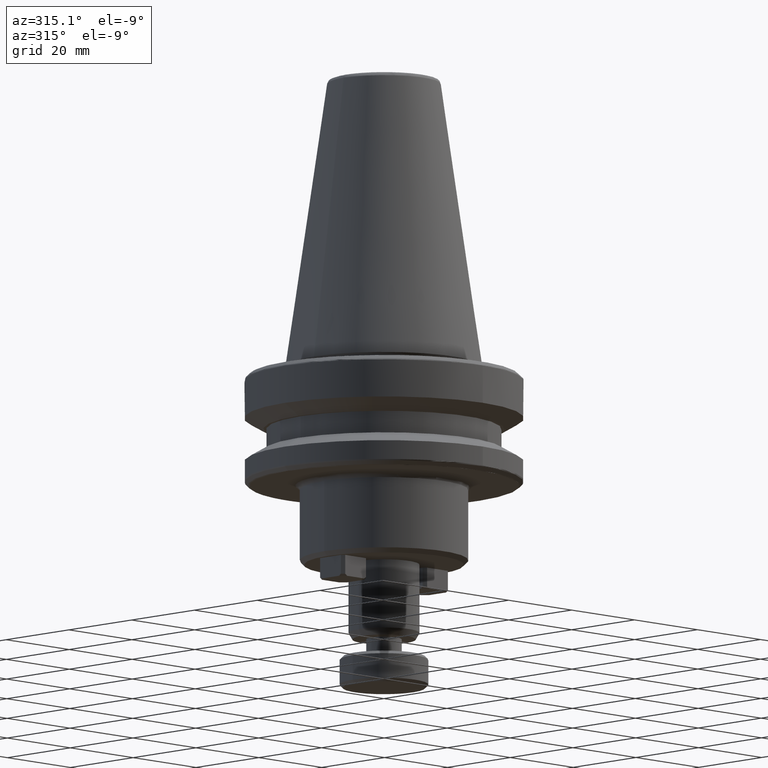
[diagram: clean part render]
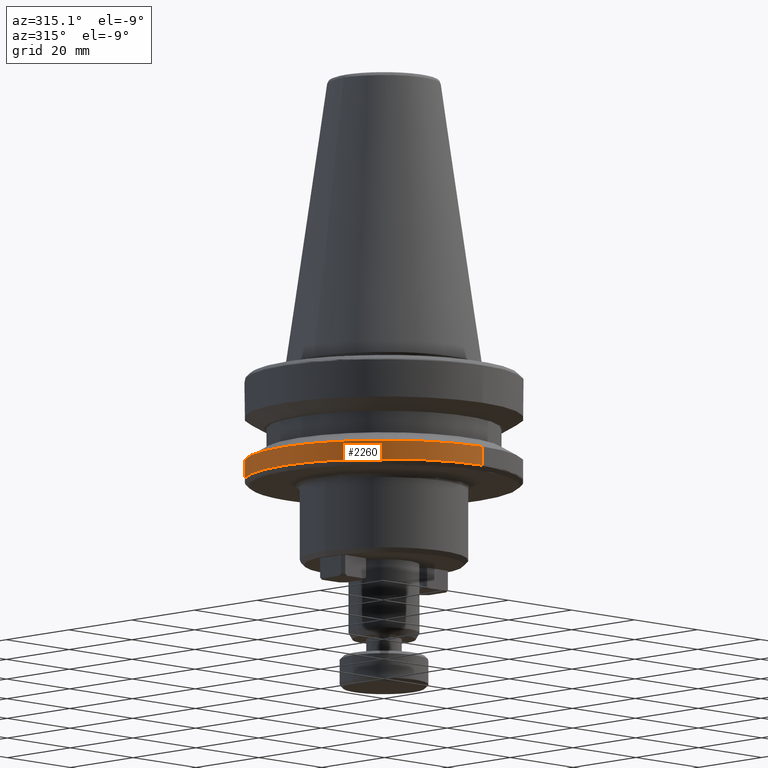
[diagram: same view with one face highlighted and labeled with its STEP entity id]
A machine part, auxiliary view. The second image highlights one B-rep face of the part: STEP entity #2260.
In plain terms, the highlighted cylindrical surface (partial cylindrical patch) has radius 31.5 mm, axis along (0, -0, 1).
Its self-contained STEP definition (entity closure, byte-faithful):
#30 = ORIENTED_EDGE ( 'NONE', *, *, #2302, .F. ) ;
#81 = DIRECTION ( 'NONE',  ( -0.0000000000000000000, 1.101411730781967500E-016, -1.000000000000000000 ) ) ;
#161 = DIRECTION ( 'NONE',  ( 0.0000000000000000000, -1.000000000000000000, 0.0000000000000000000 ) ) ;
#185 = AXIS2_PLACEMENT_3D ( 'NONE', #1345, #3449, #1649 ) ;
#258 = DIRECTION ( 'NONE',  ( 0.0000000000000000000, -5.507058653894625200E-017, 1.000000000000000000 ) ) ;
#385 = CARTESIAN_POINT ( 'NONE',  ( 0.0000000000000000000, -31.50000000000000000, -25.83431457497091800 ) ) ;
#451 = VERTEX_POINT ( 'NONE', #475 ) ;
#475 = CARTESIAN_POINT ( 'NONE',  ( -31.50000000000000000, 0.0000000000000000000, -21.57777313091598300 ) ) ;
#477 = EDGE_CURVE ( 'NONE', #3540, #3810, #3739, .T. ) ;
#488 = CIRCLE ( 'NONE', #1393, 31.50000000000000000 ) ;
#560 = AXIS2_PLACEMENT_3D ( 'NONE', #2482, #2385, #602 ) ;
#602 = DIRECTION ( 'NONE',  ( 0.0000000000000000000, 1.000000000000000000, -1.101411730778291100E-016 ) ) ;
#674 = VERTEX_POINT ( 'NONE', #729 ) ;
#729 = CARTESIAN_POINT ( 'NONE',  ( 0.0000000000000000000, -31.50000000000000000, -21.57777313091598300 ) ) ;
#791 = DIRECTION ( 'NONE',  ( -0.0000000000000000000, -0.0000000000000000000, 1.000000000000000000 ) ) ;
#824 = EDGE_CURVE ( 'NONE', #2066, #1846, #2795, .T. ) ;
#833 = CARTESIAN_POINT ( 'NONE',  ( 0.0000000000000000000, -31.50000000000000000, -25.83431457500000100 ) ) ;
#1045 = DIRECTION ( 'NONE',  ( 0.0000000000000000000, -5.507058653894625200E-017, 1.000000000000000000 ) ) ;
#1131 = LINE ( 'NONE', #833, #2830 ) ;
#1328 = FACE_OUTER_BOUND ( 'NONE', #1829, .T. ) ;
#1343 = ORIENTED_EDGE ( 'NONE', *, *, #2778, .F. ) ;
#1345 = CARTESIAN_POINT ( 'NONE',  ( 0.0000000000000000000, 0.0000000000000000000, -21.57777313091598300 ) ) ;
#1393 = AXIS2_PLACEMENT_3D ( 'NONE', #2581, #791, #2882 ) ;
#1585 = AXIS2_PLACEMENT_3D ( 'NONE', #1947, #1045, #161 ) ;
#1649 = DIRECTION ( 'NONE',  ( 1.000000000000000000, 0.0000000000000000000, 0.0000000000000000000 ) ) ;
#1751 = EDGE_CURVE ( 'NONE', #2066, #674, #1131, .T. ) ;
#1829 = EDGE_LOOP ( 'NONE', ( #3611, #1343, #2785, #1834, #30, #2734 ) ) ;
#1834 = ORIENTED_EDGE ( 'NONE', *, *, #1751, .T. ) ;
#1846 = VERTEX_POINT ( 'NONE', #3259 ) ;
#1855 = CARTESIAN_POINT ( 'NONE',  ( 0.0000000000000000000, 0.0000000000000000000, -25.83431457497092200 ) ) ;
#1876 = CYLINDRICAL_SURFACE ( 'NONE', #1585, 31.50000000000000000 ) ;
#1947 = CARTESIAN_POINT ( 'NONE',  ( 0.0000000000000000000, 0.0000000000000000000, -25.83431457500000100 ) ) ;
#2066 = VERTEX_POINT ( 'NONE', #385 ) ;
#2163 = DIRECTION ( 'NONE',  ( 0.0000000000000000000, 1.000000000000000000, 1.101411730778291100E-016 ) ) ;
#2221 = EDGE_CURVE ( 'NONE', #3810, #451, #2324, .T. ) ;
#2260 = ADVANCED_FACE ( 'NONE', ( #1328 ), #1876, .T. ) ;
#2261 = CARTESIAN_POINT ( 'NONE',  ( 3.857637417314162700E-015, 31.50000000000000000, -25.83431457500000100 ) ) ;
#2302 = EDGE_CURVE ( 'NONE', #451, #674, #488, .T. ) ;
#2324 = CIRCLE ( 'NONE', #185, 31.50000000000000000 ) ;
#2385 = DIRECTION ( 'NONE',  ( 0.0000000000000000000, -1.101411730781967500E-016, -1.000000000000000000 ) ) ;
#2482 = CARTESIAN_POINT ( 'NONE',  ( 0.0000000000000000000, 0.0000000000000000000, -25.83431457497092200 ) ) ;
#2581 = CARTESIAN_POINT ( 'NONE',  ( 0.0000000000000000000, 0.0000000000000000000, -21.57777313091598300 ) ) ;
#2591 = CIRCLE ( 'NONE', #3731, 31.50000000001813300 ) ;
#2734 = ORIENTED_EDGE ( 'NONE', *, *, #2221, .F. ) ;
#2778 = EDGE_CURVE ( 'NONE', #1846, #3540, #2591, .T. ) ;
#2785 = ORIENTED_EDGE ( 'NONE', *, *, #824, .F. ) ;
#2795 = CIRCLE ( 'NONE', #560, 31.50000000001813300 ) ;
#2830 = VECTOR ( 'NONE', #258, 1000.000000000000000 ) ;
#2882 = DIRECTION ( 'NONE',  ( 1.000000000000000000, 0.0000000000000000000, 0.0000000000000000000 ) ) ;
#2884 = CARTESIAN_POINT ( 'NONE',  ( 3.857637417314162700E-015, 31.50000000000000000, -25.83431457497091800 ) ) ;
#3017 = VECTOR ( 'NONE', #3461, 1000.000000000000000 ) ;
#3259 = CARTESIAN_POINT ( 'NONE',  ( -31.50000000001359300, -4.845568498675163300E-009, -25.83431457497197700 ) ) ;
#3337 = CARTESIAN_POINT ( 'NONE',  ( 3.857637417314162700E-015, 31.50000000000000000, -21.57777313091598300 ) ) ;
#3449 = DIRECTION ( 'NONE',  ( -0.0000000000000000000, -0.0000000000000000000, 1.000000000000000000 ) ) ;
#3461 = DIRECTION ( 'NONE',  ( 0.0000000000000000000, -5.507058653894625200E-017, 1.000000000000000000 ) ) ;
#3540 = VERTEX_POINT ( 'NONE', #2884 ) ;
#3611 = ORIENTED_EDGE ( 'NONE', *, *, #477, .F. ) ;
#3731 = AXIS2_PLACEMENT_3D ( 'NONE', #1855, #81, #2163 ) ;
#3739 = LINE ( 'NONE', #2261, #3017 ) ;
#3810 = VERTEX_POINT ( 'NONE', #3337 ) ;